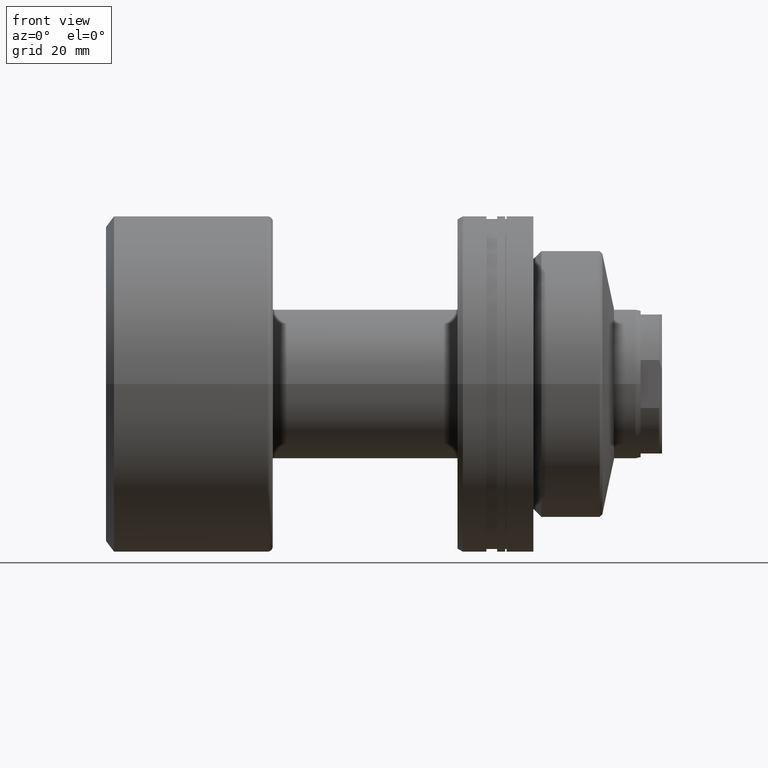
[diagram: clean part render]
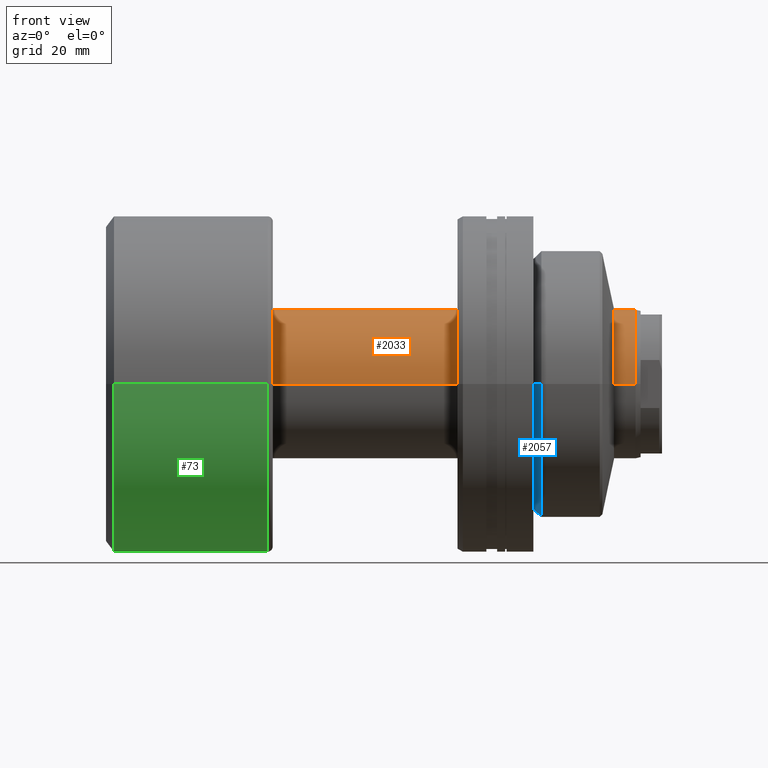
[diagram: same view with three faces highlighted in distinct colors, each labeled with its STEP entity id]
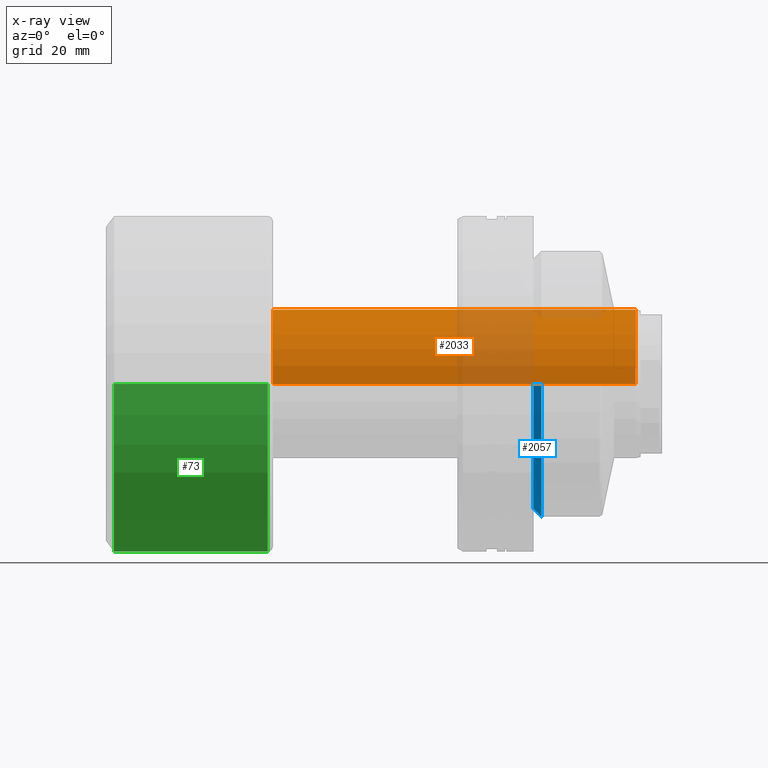
[diagram: x-ray of the same camera — body ghosted, the three highlighted faces saturated]
A machine part, front view with three faces highlighted in distinct colors.
The next image is the same camera in x-ray (body ghosted, the three faces saturated) — at least one of them is partly hidden behind the body in this view.
Their STEP definitions:

[orange] entity #2033 — the highlighted cylindrical surface (partial cylindrical patch) has radius 14 mm, axis along (-1, -0, -0).
#44 = VERTEX_POINT ( 'NONE', #201 ) ;
#78 = VERTEX_POINT ( 'NONE', #1794 ) ;
#123 = CARTESIAN_POINT ( 'NONE',  ( 99.06675751232378957, 1.059560898695838428E-15, 0.000000000000000000 ) ) ;
#160 = ORIENTED_EDGE ( 'NONE', *, *, #593, .F. ) ;
#197 = EDGE_LOOP ( 'NONE', ( #1108, #1841, #160, #1305 ) ) ;
#201 = CARTESIAN_POINT ( 'NONE',  ( 99.06675751232378957, -14.00000000000019362, 0.000000000000000000 ) ) ;
#297 = CARTESIAN_POINT ( 'NONE',  ( -1.497359250896702259E-16, 14.00000000000009592, 1.714505518806306274E-15 ) ) ;
#349 = CARTESIAN_POINT ( 'NONE',  ( 31.19999999999999929, 3.336972044855484916E-16, 0.000000000000000000 ) ) ;
#374 = CYLINDRICAL_SURFACE ( 'NONE', #2311, 14.00000000000009592 ) ;
#437 = VECTOR ( 'NONE', #453, 1000.000000000000000 ) ;
#453 = DIRECTION ( 'NONE',  ( -1.000000000000000000, -1.069542322069065801E-17, -0.000000000000000000 ) ) ;
#527 = CARTESIAN_POINT ( 'NONE',  ( 0.000000000000000000, 0.000000000000000000, 0.000000000000000000 ) ) ;
#550 = DIRECTION ( 'NONE',  ( 0.000000000000000000, -1.000000000000000000, 0.000000000000000000 ) ) ;
#593 = EDGE_CURVE ( 'NONE', #594, #78, #852, .T. ) ;
#594 = VERTEX_POINT ( 'NONE', #2290 ) ;
#624 = VECTOR ( 'NONE', #2150, 1000.000000000000000 ) ;
#726 = FACE_OUTER_BOUND ( 'NONE', #197, .T. ) ;
#738 = LINE ( 'NONE', #746, #624 ) ;
#746 = CARTESIAN_POINT ( 'NONE',  ( 1.497359250896702259E-16, -14.00000000000009592, 0.000000000000000000 ) ) ;
#808 = VERTEX_POINT ( 'NONE', #1628 ) ;
#852 = CIRCLE ( 'NONE', #2146, 13.99999999999999822 ) ;
#1054 = DIRECTION ( 'NONE',  ( 1.069542322069065647E-17, -1.000000000000000000, 0.000000000000000000 ) ) ;
#1108 = ORIENTED_EDGE ( 'NONE', *, *, #1324, .T. ) ;
#1250 = EDGE_CURVE ( 'NONE', #44, #594, #738, .T. ) ;
#1269 = DIRECTION ( 'NONE',  ( -1.000000000000000000, -1.069542322069065801E-17, -0.000000000000000000 ) ) ;
#1305 = ORIENTED_EDGE ( 'NONE', *, *, #1250, .F. ) ;
#1324 = EDGE_CURVE ( 'NONE', #44, #808, #1636, .T. ) ;
#1431 = EDGE_CURVE ( 'NONE', #808, #78, #1870, .T. ) ;
#1540 = DIRECTION ( 'NONE',  ( -1.000000000000000000, -1.069542322069065801E-17, -0.000000000000000000 ) ) ;
#1628 = CARTESIAN_POINT ( 'NONE',  ( 99.06675751232378957, 14.00000000000019540, 1.714505518806318501E-15 ) ) ;
#1636 = CIRCLE ( 'NONE', #2087, 14.00000000000019540 ) ;
#1712 = DIRECTION ( 'NONE',  ( 0.000000000000000000, -1.000000000000000000, 0.000000000000000000 ) ) ;
#1794 = CARTESIAN_POINT ( 'NONE',  ( 31.19999999999999929, 13.99999999999999822, 1.714505518806300357E-15 ) ) ;
#1841 = ORIENTED_EDGE ( 'NONE', *, *, #1431, .T. ) ;
#1870 = LINE ( 'NONE', #297, #437 ) ;
#2033 = ADVANCED_FACE ( 'NONE', ( #726 ), #374, .T. ) ;
#2087 = AXIS2_PLACEMENT_3D ( 'NONE', #123, #1540, #1712 ) ;
#2131 = DIRECTION ( 'NONE',  ( -1.000000000000000000, -1.069542322069065801E-17, -0.000000000000000000 ) ) ;
#2146 = AXIS2_PLACEMENT_3D ( 'NONE', #349, #2131, #550 ) ;
#2150 = DIRECTION ( 'NONE',  ( -1.000000000000000000, -1.069542322069065801E-17, -0.000000000000000000 ) ) ;
#2290 = CARTESIAN_POINT ( 'NONE',  ( 31.19999999999999929, -13.99999999999999822, 0.000000000000000000 ) ) ;
#2311 = AXIS2_PLACEMENT_3D ( 'NONE', #527, #1269, #1054 ) ;

[blue] entity #2057 — the highlighted conical surface has half-angle 45 deg.
#1 = VERTEX_POINT ( 'NONE', #399 ) ;
#125 = EDGE_LOOP ( 'NONE', ( #2082, #879, #825, #230 ) ) ;
#230 = ORIENTED_EDGE ( 'NONE', *, *, #1724, .F. ) ;
#234 = EDGE_CURVE ( 'NONE', #1, #1926, #1014, .T. ) ;
#239 = DIRECTION ( 'NONE',  ( -1.942890293094021579E-15, 1.000000000000000000, 0.000000000000000000 ) ) ;
#269 = CARTESIAN_POINT ( 'NONE',  ( -18.00000000000009237, 23.50000000000072831, 0.000000000000000000 ) ) ;
#295 = AXIS2_PLACEMENT_3D ( 'NONE', #1786, #1770, #1255 ) ;
#397 = CIRCLE ( 'NONE', #295, 23.50000000000070344 ) ;
#399 = CARTESIAN_POINT ( 'NONE',  ( -18.00000000000000355, -23.50000000000067857, 2.969768487932376647E-15 ) ) ;
#428 = VECTOR ( 'NONE', #979, 999.9999999999998863 ) ;
#471 = CONICAL_SURFACE ( 'NONE', #1375, 23.50000000000070344, 0.7853981633974506105 ) ;
#535 = FACE_OUTER_BOUND ( 'NONE', #125, .T. ) ;
#612 = CARTESIAN_POINT ( 'NONE',  ( -16.50000000000072831, 2.661465894658677424E-14, 0.000000000000000000 ) ) ;
#639 = CARTESIAN_POINT ( 'NONE',  ( -16.50000000000068212, -25.00000000000000000, 3.061616997868386198E-15 ) ) ;
#717 = CARTESIAN_POINT ( 'NONE',  ( -18.00000000000004619, 2.371756733105775503E-14, 0.000000000000000000 ) ) ;
#796 = DIRECTION ( 'NONE',  ( 1.000000000000000000, 1.931394410353556421E-15, -0.000000000000000000 ) ) ;
#825 = ORIENTED_EDGE ( 'NONE', *, *, #1779, .T. ) ;
#863 = CARTESIAN_POINT ( 'NONE',  ( -16.50000000000077804, 25.00000000000005684, 0.000000000000000000 ) ) ;
#879 = ORIENTED_EDGE ( 'NONE', *, *, #2066, .T. ) ;
#969 = CARTESIAN_POINT ( 'NONE',  ( -18.00000000000000355, -23.50000000000067857, 2.877919977996365912E-15 ) ) ;
#979 = DIRECTION ( 'NONE',  ( 0.7071067811865472397, -0.7071067811865479058, 8.659560562354953812E-17 ) ) ;
#993 = VERTEX_POINT ( 'NONE', #1379 ) ;
#1014 = LINE ( 'NONE', #969, #428 ) ;
#1220 = AXIS2_PLACEMENT_3D ( 'NONE', #612, #796, #239 ) ;
#1255 = DIRECTION ( 'NONE',  ( -1.919268526612579991E-15, 1.000000000000000000, 0.000000000000000000 ) ) ;
#1331 = DIRECTION ( 'NONE',  ( 0.7071067811865445751, 0.7071067811865504593, 0.000000000000000000 ) ) ;
#1375 = AXIS2_PLACEMENT_3D ( 'NONE', #717, #2110, #1969 ) ;
#1379 = CARTESIAN_POINT ( 'NONE',  ( -18.00000000000009237, 23.50000000000072831, 0.000000000000000000 ) ) ;
#1593 = CIRCLE ( 'NONE', #1220, 25.00000000000002842 ) ;
#1646 = VERTEX_POINT ( 'NONE', #863 ) ;
#1724 = EDGE_CURVE ( 'NONE', #1926, #1646, #1593, .T. ) ;
#1770 = DIRECTION ( 'NONE',  ( 1.000000000000000000, 1.931394410353556421E-15, -0.000000000000000000 ) ) ;
#1779 = EDGE_CURVE ( 'NONE', #993, #1646, #2219, .T. ) ;
#1786 = CARTESIAN_POINT ( 'NONE',  ( -18.00000000000004619, 2.371756733105775503E-14, 0.000000000000000000 ) ) ;
#1891 = VECTOR ( 'NONE', #1331, 1000.000000000000000 ) ;
#1926 = VERTEX_POINT ( 'NONE', #639 ) ;
#1969 = DIRECTION ( 'NONE',  ( -1.919268526612579991E-15, 1.000000000000000000, 0.000000000000000000 ) ) ;
#2057 = ADVANCED_FACE ( 'NONE', ( #535 ), #471, .T. ) ;
#2066 = EDGE_CURVE ( 'NONE', #1, #993, #397, .T. ) ;
#2082 = ORIENTED_EDGE ( 'NONE', *, *, #234, .F. ) ;
#2110 = DIRECTION ( 'NONE',  ( 1.000000000000000000, 1.931394410353556421E-15, -0.000000000000000000 ) ) ;
#2219 = LINE ( 'NONE', #269, #1891 ) ;

[green] entity #73 — the highlighted cylindrical surface (partial cylindrical patch) has radius 31.5 mm, axis along (-1, -0, -0).
#43 = CARTESIAN_POINT ( 'NONE',  ( 1.500000000000003775, -31.50000000000000000, 3.857637417314162689E-15 ) ) ;
#73 = ADVANCED_FACE ( 'NONE', ( #562 ), #727, .T. ) ;
#95 = EDGE_CURVE ( 'NONE', #328, #554, #1165, .T. ) ;
#136 = CARTESIAN_POINT ( 'NONE',  ( 1.500000000000003331, 31.50000000000000000, 0.000000000000000000 ) ) ;
#157 = AXIS2_PLACEMENT_3D ( 'NONE', #1970, #1654, #366 ) ;
#328 = VERTEX_POINT ( 'NONE', #661 ) ;
#335 = CARTESIAN_POINT ( 'NONE',  ( 1.500000000000003553, 1.604313483103602168E-17, 0.000000000000000000 ) ) ;
#366 = DIRECTION ( 'NONE',  ( 0.000000000000000000, -1.000000000000000000, 0.000000000000000000 ) ) ;
#481 = ORIENTED_EDGE ( 'NONE', *, *, #1342, .F. ) ;
#486 = ORIENTED_EDGE ( 'NONE', *, *, #652, .T. ) ;
#505 = DIRECTION ( 'NONE',  ( -1.000000000000000000, -1.069542322069065801E-17, -0.000000000000000000 ) ) ;
#554 = VERTEX_POINT ( 'NONE', #835 ) ;
#562 = FACE_OUTER_BOUND ( 'NONE', #1503, .T. ) ;
#580 = AXIS2_PLACEMENT_3D ( 'NONE', #335, #2299, #1600 ) ;
#652 = EDGE_CURVE ( 'NONE', #554, #1809, #1036, .T. ) ;
#661 = CARTESIAN_POINT ( 'NONE',  ( 30.19999999999999929, 31.50000000000000000, 3.857637417314162689E-15 ) ) ;
#682 = AXIS2_PLACEMENT_3D ( 'NONE', #1278, #1258, #1987 ) ;
#727 = CYLINDRICAL_SURFACE ( 'NONE', #682, 31.50000000000000000 ) ;
#771 = CIRCLE ( 'NONE', #580, 31.50000000000000000 ) ;
#835 = CARTESIAN_POINT ( 'NONE',  ( 30.19999999999999929, -31.50000000000000000, 0.000000000000000000 ) ) ;
#896 = CARTESIAN_POINT ( 'NONE',  ( 3.369058314517557588E-16, -31.50000000000000000, 0.000000000000000000 ) ) ;
#1036 = LINE ( 'NONE', #896, #1482 ) ;
#1165 = CIRCLE ( 'NONE', #157, 31.50000000000000000 ) ;
#1169 = DIRECTION ( 'NONE',  ( -1.000000000000000000, -1.069542322069065801E-17, -0.000000000000000000 ) ) ;
#1200 = CARTESIAN_POINT ( 'NONE',  ( -3.369058314517557588E-16, 31.50000000000000000, 3.857637417314162689E-15 ) ) ;
#1258 = DIRECTION ( 'NONE',  ( -1.000000000000000000, -1.069542322069065801E-17, -0.000000000000000000 ) ) ;
#1278 = CARTESIAN_POINT ( 'NONE',  ( 0.000000000000000000, 0.000000000000000000, 0.000000000000000000 ) ) ;
#1322 = LINE ( 'NONE', #1200, #1453 ) ;
#1342 = EDGE_CURVE ( 'NONE', #328, #1831, #1322, .T. ) ;
#1453 = VECTOR ( 'NONE', #1169, 1000.000000000000000 ) ;
#1482 = VECTOR ( 'NONE', #505, 1000.000000000000000 ) ;
#1491 = ORIENTED_EDGE ( 'NONE', *, *, #95, .T. ) ;
#1503 = EDGE_LOOP ( 'NONE', ( #481, #1491, #486, #2270 ) ) ;
#1600 = DIRECTION ( 'NONE',  ( 1.376764663473656463E-17, -1.000000000000000000, 0.000000000000000000 ) ) ;
#1654 = DIRECTION ( 'NONE',  ( -1.000000000000000000, -1.069542322069065801E-17, -0.000000000000000000 ) ) ;
#1809 = VERTEX_POINT ( 'NONE', #43 ) ;
#1831 = VERTEX_POINT ( 'NONE', #136 ) ;
#1970 = CARTESIAN_POINT ( 'NONE',  ( 30.19999999999999929, 3.230017812648578475E-16, 0.000000000000000000 ) ) ;
#1987 = DIRECTION ( 'NONE',  ( 1.069542322069065955E-17, -1.000000000000000000, 0.000000000000000000 ) ) ;
#2107 = EDGE_CURVE ( 'NONE', #1831, #1809, #771, .T. ) ;
#2270 = ORIENTED_EDGE ( 'NONE', *, *, #2107, .F. ) ;
#2299 = DIRECTION ( 'NONE',  ( -1.000000000000000000, -1.069542322069065801E-17, -0.000000000000000000 ) ) ;